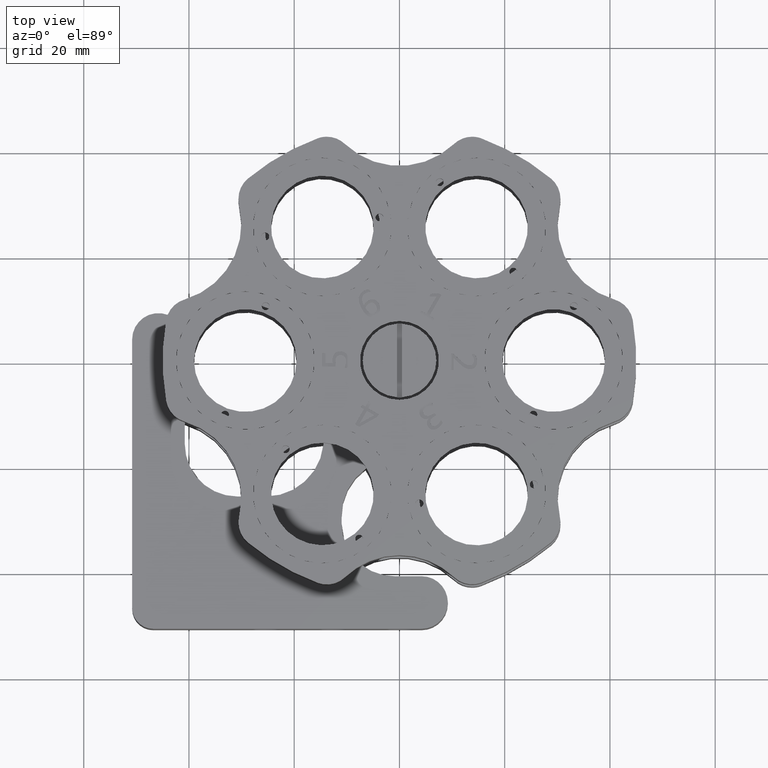
[diagram: clean part render]
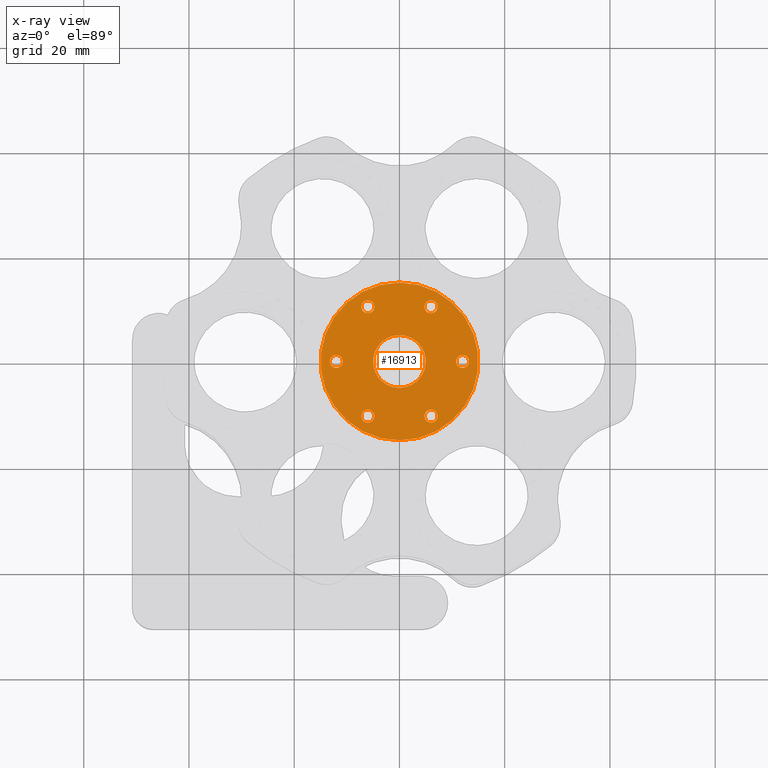
[diagram: x-ray — body ghosted, one internal face saturated and labeled with its STEP entity id]
A machine part, top view, then the same camera in x-ray: the body is ghosted and one INTERNAL B-rep face — a face not visible from any outside direction — is saturated and labeled: STEP entity #16913.
In plain terms, the highlighted planar face has unit normal (0, 0, -1).
Its self-contained STEP definition (entity closure, byte-faithful):
#88 = CIRCLE ( 'NONE', #530, 1.224744871391594000 ) ;
#139 = VERTEX_POINT ( 'NONE', #18850 ) ;
#349 = FACE_BOUND ( 'NONE', #7277, .T. ) ;
#450 = AXIS2_PLACEMENT_3D ( 'NONE', #5429, #5524, #7395 ) ;
#530 = AXIS2_PLACEMENT_3D ( 'NONE', #6548, #16605, #16518 ) ;
#550 = EDGE_LOOP ( 'NONE', ( #15396, #14857 ) ) ;
#652 = FACE_BOUND ( 'NONE', #24494, .T. ) ;
#679 = ORIENTED_EDGE ( 'NONE', *, *, #12152, .F. ) ;
#790 = DIRECTION ( 'NONE',  ( 0.0000000000000000000, 1.000000000000000000, 2.885270652500996800E-016 ) ) ;
#1151 = EDGE_CURVE ( 'NONE', #15142, #8997, #6407, .T. ) ;
#1196 = AXIS2_PLACEMENT_3D ( 'NONE', #16464, #12523, #16557 ) ;
#1659 = CIRCLE ( 'NONE', #19320, 1.224744871391594700 ) ;
#1807 = CARTESIAN_POINT ( 'NONE',  ( 6.000000000000159000, 10.39230484541377700, 2.818925648462311500E-015 ) ) ;
#1837 = ORIENTED_EDGE ( 'NONE', *, *, #15254, .F. ) ;
#1842 = DIRECTION ( 'NONE',  ( -1.797534614761411900E-031, 1.000000000000000000, 2.885270652500995900E-016 ) ) ;
#2183 = CARTESIAN_POINT ( 'NONE',  ( 8.169198098000915100E-016, 5.734907523177760700E-013, -1.084202172485504400E-015 ) ) ;
#2252 = DIRECTION ( 'NONE',  ( -1.810509315419171400E-031, 1.000000000000000000, 2.885270652500995900E-016 ) ) ;
#2573 = DIRECTION ( 'NONE',  ( 1.418662626296612800E-016, 2.885270652501001300E-016, -1.000000000000000000 ) ) ;
#2580 = DIRECTION ( 'NONE',  ( 1.418662626296612800E-016, 2.885270652501001300E-016, -1.000000000000000000 ) ) ;
#2592 = CIRCLE ( 'NONE', #4418, 15.00000000000006900 ) ;
#2706 = AXIS2_PLACEMENT_3D ( 'NONE', #20975, #2580, #8665 ) ;
#2911 = DIRECTION ( 'NONE',  ( 1.418662626296612800E-016, 2.885270652501001300E-016, -1.000000000000000000 ) ) ;
#3420 = EDGE_CURVE ( 'NONE', #20571, #18868, #6334, .T. ) ;
#3941 = CARTESIAN_POINT ( 'NONE',  ( -12.00000000000007300, 6.572863044500116800E-013, -2.818925648462311500E-015 ) ) ;
#3978 = DIRECTION ( 'NONE',  ( 1.418662626296612800E-016, 2.885270652501001300E-016, -1.000000000000000000 ) ) ;
#4167 = DIRECTION ( 'NONE',  ( 1.418662626296612800E-016, 2.885270652501001300E-016, -1.000000000000000000 ) ) ;
#4177 = FACE_BOUND ( 'NONE', #13383, .T. ) ;
#4385 = CARTESIAN_POINT ( 'NONE',  ( 8.169198098000915100E-016, 5.734907523177760700E-013, -1.084202172485504400E-015 ) ) ;
#4418 = AXIS2_PLACEMENT_3D ( 'NONE', #20064, #14141, #1842 ) ;
#4556 = ORIENTED_EDGE ( 'NONE', *, *, #20690, .F. ) ;
#4717 = ORIENTED_EDGE ( 'NONE', *, *, #3420, .F. ) ;
#4793 = CARTESIAN_POINT ( 'NONE',  ( 2.582956877206288400E-015, 15.00000000000057400, 3.243703806265997100E-015 ) ) ;
#4895 = DIRECTION ( 'NONE',  ( 1.418662626296612800E-016, 2.885270652501001300E-016, -1.000000000000000000 ) ) ;
#4924 = CARTESIAN_POINT ( 'NONE',  ( -6.000000000000085300, -11.61704971680431300, -1.871255084902433700E-015 ) ) ;
#5179 = CIRCLE ( 'NONE', #20367, 15.00000000000006900 ) ;
#5307 = AXIS2_PLACEMENT_3D ( 'NONE', #16849, #4895, #20972 ) ;
#5370 = DIRECTION ( 'NONE',  ( 0.0000000000000000000, 1.000000000000000000, 2.885270652500996800E-016 ) ) ;
#5389 = CIRCLE ( 'NONE', #21671, 1.224744871391594000 ) ;
#5429 = CARTESIAN_POINT ( 'NONE',  ( 6.000000000000013300, -10.39230484541276700, -3.252606517456513300E-015 ) ) ;
#5524 = DIRECTION ( 'NONE',  ( 1.418662626296612800E-016, 2.885270652501001300E-016, -1.000000000000000000 ) ) ;
#5832 = AXIS2_PLACEMENT_3D ( 'NONE', #2183, #3978, #12407 ) ;
#6059 = EDGE_CURVE ( 'NONE', #18868, #20571, #6552, .T. ) ;
#6120 = CARTESIAN_POINT ( 'NONE',  ( 7.459866784852650100E-016, -14.99999999999942400, -5.412108151237006300E-015 ) ) ;
#6334 = CIRCLE ( 'NONE', #13763, 1.224744871391594000 ) ;
#6407 = CIRCLE ( 'NONE', #1196, 1.224744871391594700 ) ;
#6423 = FACE_OUTER_BOUND ( 'NONE', #550, .T. ) ;
#6499 = CIRCLE ( 'NONE', #16160, 5.000000000000023100 ) ;
#6548 = CARTESIAN_POINT ( 'NONE',  ( -6.000000000000085300, -10.39230484541271900, -1.517883041479706200E-015 ) ) ;
#6552 = CIRCLE ( 'NONE', #17045, 1.224744871391594000 ) ;
#6927 = DIRECTION ( 'NONE',  ( 1.418662626296612800E-016, 2.885270652501001300E-016, -1.000000000000000000 ) ) ;
#7244 = CARTESIAN_POINT ( 'NONE',  ( 12.00000000000007300, 5.734907523177760700E-013, 6.505213034913026600E-016 ) ) ;
#7277 = EDGE_LOOP ( 'NONE', ( #9683, #679 ) ) ;
#7345 = VERTEX_POINT ( 'NONE', #19619 ) ;
#7359 = CIRCLE ( 'NONE', #2706, 1.224744871391594000 ) ;
#7395 = DIRECTION ( 'NONE',  ( 0.0000000000000000000, 1.000000000000000000, 2.885270652500996800E-016 ) ) ;
#7792 = DIRECTION ( 'NONE',  ( 1.418662626296612800E-016, 2.885270652501001300E-016, -1.000000000000000000 ) ) ;
#8005 = CARTESIAN_POINT ( 'NONE',  ( 6.000000000000013300, -10.39230484541276700, -3.252606517456513300E-015 ) ) ;
#8016 = FACE_BOUND ( 'NONE', #19625, .T. ) ;
#8510 = VERTEX_POINT ( 'NONE', #11480 ) ;
#8665 = DIRECTION ( 'NONE',  ( 0.0000000000000000000, 1.000000000000000000, 2.885270652500996800E-016 ) ) ;
#8709 = ORIENTED_EDGE ( 'NONE', *, *, #12484, .F. ) ;
#8821 = EDGE_LOOP ( 'NONE', ( #8709, #13039 ) ) ;
#8982 = DIRECTION ( 'NONE',  ( -1.797534614761411900E-031, 1.000000000000000000, 2.885270652500995900E-016 ) ) ;
#8997 = VERTEX_POINT ( 'NONE', #23934 ) ;
#9297 = FACE_BOUND ( 'NONE', #8821, .T. ) ;
#9648 = CIRCLE ( 'NONE', #20563, 1.224744871391594000 ) ;
#9683 = ORIENTED_EDGE ( 'NONE', *, *, #13568, .F. ) ;
#9968 = VERTEX_POINT ( 'NONE', #18885 ) ;
#10187 = EDGE_LOOP ( 'NONE', ( #19559, #12682 ) ) ;
#10590 = AXIS2_PLACEMENT_3D ( 'NONE', #17189, #2911, #790 ) ;
#10759 = ORIENTED_EDGE ( 'NONE', *, *, #15578, .F. ) ;
#10915 = CARTESIAN_POINT ( 'NONE',  ( 12.00000000000007300, 1.224744871392168300, 1.003893346914030200E-015 ) ) ;
#11480 = CARTESIAN_POINT ( 'NONE',  ( 8.169198098000906200E-016, 5.000000000000596900, 3.584331537650001500E-016 ) ) ;
#11613 = VERTEX_POINT ( 'NONE', #25009 ) ;
#11663 = CARTESIAN_POINT ( 'NONE',  ( -5.999999999999939600, 9.167559974022315900, 4.200277081016391500E-015 ) ) ;
#12152 = EDGE_CURVE ( 'NONE', #15966, #8510, #19710, .T. ) ;
#12323 = VERTEX_POINT ( 'NONE', #4924 ) ;
#12407 = DIRECTION ( 'NONE',  ( -1.733336949948504200E-031, 1.000000000000000000, 2.885270652500995900E-016 ) ) ;
#12484 = EDGE_CURVE ( 'NONE', #14162, #139, #12970, .T. ) ;
#12523 = DIRECTION ( 'NONE',  ( 1.418662626296612800E-016, 2.885270652501001300E-016, -1.000000000000000000 ) ) ;
#12545 = DIRECTION ( 'NONE',  ( -1.733336949948504200E-031, 1.000000000000000000, 2.885270652500995900E-016 ) ) ;
#12625 = EDGE_CURVE ( 'NONE', #139, #14162, #25473, .T. ) ;
#12682 = ORIENTED_EDGE ( 'NONE', *, *, #14759, .F. ) ;
#12936 = DIRECTION ( 'NONE',  ( 1.418662626296612800E-016, 2.885270652501001300E-016, -1.000000000000000000 ) ) ;
#12970 = CIRCLE ( 'NONE', #14093, 1.224744871391594700 ) ;
#13039 = ORIENTED_EDGE ( 'NONE', *, *, #12625, .F. ) ;
#13383 = EDGE_LOOP ( 'NONE', ( #1837, #4556 ) ) ;
#13568 = EDGE_CURVE ( 'NONE', #8510, #15966, #6499, .T. ) ;
#13720 = VERTEX_POINT ( 'NONE', #19506 ) ;
#13763 = AXIS2_PLACEMENT_3D ( 'NONE', #14750, #21371, #19119 ) ;
#13884 = EDGE_CURVE ( 'NONE', #12323, #7345, #88, .T. ) ;
#14093 = AXIS2_PLACEMENT_3D ( 'NONE', #3941, #7792, #15973 ) ;
#14136 = DIRECTION ( 'NONE',  ( 0.0000000000000000000, 1.000000000000000000, 2.885270652500996800E-016 ) ) ;
#14141 = DIRECTION ( 'NONE',  ( 1.418662626296612800E-016, 2.885270652501001300E-016, -1.000000000000000000 ) ) ;
#14162 = VERTEX_POINT ( 'NONE', #16573 ) ;
#14345 = ORIENTED_EDGE ( 'NONE', *, *, #13884, .F. ) ;
#14537 = CARTESIAN_POINT ( 'NONE',  ( 8.169198098000915100E-016, 5.734907523177760700E-013, -1.084202172485504400E-015 ) ) ;
#14750 = CARTESIAN_POINT ( 'NONE',  ( 6.000000000000159000, 10.39230484541377700, 2.818925648462311500E-015 ) ) ;
#14759 = EDGE_CURVE ( 'NONE', #8997, #15142, #1659, .T. ) ;
#14857 = ORIENTED_EDGE ( 'NONE', *, *, #15418, .T. ) ;
#15086 = FACE_BOUND ( 'NONE', #25500, .T. ) ;
#15142 = VERTEX_POINT ( 'NONE', #10915 ) ;
#15173 = EDGE_CURVE ( 'NONE', #25863, #11613, #23455, .T. ) ;
#15254 = EDGE_CURVE ( 'NONE', #13720, #9968, #18324, .T. ) ;
#15396 = ORIENTED_EDGE ( 'NONE', *, *, #26339, .T. ) ;
#15418 = EDGE_CURVE ( 'NONE', #17470, #21602, #2592, .T. ) ;
#15578 = EDGE_CURVE ( 'NONE', #7345, #12323, #9648, .T. ) ;
#15966 = VERTEX_POINT ( 'NONE', #21728 ) ;
#15973 = DIRECTION ( 'NONE',  ( 0.0000000000000000000, 1.000000000000000000, 2.885270652500995400E-016 ) ) ;
#16160 = AXIS2_PLACEMENT_3D ( 'NONE', #4385, #2573, #12545 ) ;
#16464 = CARTESIAN_POINT ( 'NONE',  ( 12.00000000000007300, 5.734907523177760700E-013, 6.505213034913026600E-016 ) ) ;
#16518 = DIRECTION ( 'NONE',  ( 0.0000000000000000000, 1.000000000000000000, 2.885270652500998300E-016 ) ) ;
#16557 = DIRECTION ( 'NONE',  ( 0.0000000000000000000, 1.000000000000000000, 2.885270652500996800E-016 ) ) ;
#16573 = CARTESIAN_POINT ( 'NONE',  ( -12.00000000000007300, 1.224744871392252000, -2.465553605039584000E-015 ) ) ;
#16605 = DIRECTION ( 'NONE',  ( 1.418662626296612800E-016, 2.885270652501001300E-016, -1.000000000000000000 ) ) ;
#16849 = CARTESIAN_POINT ( 'NONE',  ( -12.00000000000007300, 6.572863044500116800E-013, -2.818925648462311500E-015 ) ) ;
#16913 = ADVANCED_FACE ( 'NONE', ( #652, #8016, #9297, #15086, #4177, #23136, #6423, #349 ), #22720, .T. ) ;
#17045 = AXIS2_PLACEMENT_3D ( 'NONE', #1807, #22104, #20112 ) ;
#17068 = CARTESIAN_POINT ( 'NONE',  ( -6.000000000000085300, -10.39230484541271900, -1.517883041479706200E-015 ) ) ;
#17156 = DIRECTION ( 'NONE',  ( 0.0000000000000000000, 1.000000000000000000, 2.885270652500998300E-016 ) ) ;
#17189 = CARTESIAN_POINT ( 'NONE',  ( -5.999999999999939600, 10.39230484541391100, 4.553649124439118600E-015 ) ) ;
#17261 = CARTESIAN_POINT ( 'NONE',  ( 6.000000000000159000, 11.61704971680537000, 3.172297691885039100E-015 ) ) ;
#17470 = VERTEX_POINT ( 'NONE', #4793 ) ;
#18324 = CIRCLE ( 'NONE', #450, 1.224744871391594000 ) ;
#18850 = CARTESIAN_POINT ( 'NONE',  ( -12.00000000000007300, -1.224744871390937500, -3.172297691885039100E-015 ) ) ;
#18868 = VERTEX_POINT ( 'NONE', #17261 ) ;
#18885 = CARTESIAN_POINT ( 'NONE',  ( 6.000000000000013300, -11.61704971680436100, -3.605978560879240400E-015 ) ) ;
#19119 = DIRECTION ( 'NONE',  ( 0.0000000000000000000, 1.000000000000000000, 2.885270652500996800E-016 ) ) ;
#19320 = AXIS2_PLACEMENT_3D ( 'NONE', #7244, #21613, #5370 ) ;
#19498 = CARTESIAN_POINT ( 'NONE',  ( 8.169198098000915100E-016, 5.734907523177760700E-013, -1.084202172485504400E-015 ) ) ;
#19506 = CARTESIAN_POINT ( 'NONE',  ( 6.000000000000013300, -9.167559974021173700, -2.899234474033785800E-015 ) ) ;
#19559 = ORIENTED_EDGE ( 'NONE', *, *, #1151, .F. ) ;
#19619 = CARTESIAN_POINT ( 'NONE',  ( -6.000000000000085300, -9.167559974021124000, -1.164510998056978700E-015 ) ) ;
#19625 = EDGE_LOOP ( 'NONE', ( #23721, #23897 ) ) ;
#19635 = EDGE_CURVE ( 'NONE', #11613, #25863, #7359, .T. ) ;
#19710 = CIRCLE ( 'NONE', #5832, 5.000000000000023100 ) ;
#19771 = CARTESIAN_POINT ( 'NONE',  ( 6.000000000000159000, 9.167559974022182700, 2.465553605039584000E-015 ) ) ;
#20064 = CARTESIAN_POINT ( 'NONE',  ( 8.169198098000915100E-016, 5.734907523177760700E-013, -1.084202172485504400E-015 ) ) ;
#20112 = DIRECTION ( 'NONE',  ( 0.0000000000000000000, 1.000000000000000000, 2.885270652500996800E-016 ) ) ;
#20367 = AXIS2_PLACEMENT_3D ( 'NONE', #19498, #6927, #8982 ) ;
#20563 = AXIS2_PLACEMENT_3D ( 'NONE', #17068, #12936, #17156 ) ;
#20571 = VERTEX_POINT ( 'NONE', #19771 ) ;
#20690 = EDGE_CURVE ( 'NONE', #9968, #13720, #5389, .T. ) ;
#20972 = DIRECTION ( 'NONE',  ( 0.0000000000000000000, 1.000000000000000000, 2.885270652500995400E-016 ) ) ;
#20975 = CARTESIAN_POINT ( 'NONE',  ( -5.999999999999939600, 10.39230484541391100, 4.553649124439118600E-015 ) ) ;
#21371 = DIRECTION ( 'NONE',  ( 1.418662626296612800E-016, 2.885270652501001300E-016, -1.000000000000000000 ) ) ;
#21602 = VERTEX_POINT ( 'NONE', #6120 ) ;
#21613 = DIRECTION ( 'NONE',  ( 1.418662626296612800E-016, 2.885270652501001300E-016, -1.000000000000000000 ) ) ;
#21671 = AXIS2_PLACEMENT_3D ( 'NONE', #8005, #4167, #14136 ) ;
#21728 = CARTESIAN_POINT ( 'NONE',  ( 9.327112901699562200E-016, -4.999999999999427100, -2.526837498736004900E-015 ) ) ;
#22104 = DIRECTION ( 'NONE',  ( 1.418662626296612800E-016, 2.885270652501001300E-016, -1.000000000000000000 ) ) ;
#22317 = AXIS2_PLACEMENT_3D ( 'NONE', #14537, #24870, #2252 ) ;
#22720 = PLANE ( 'NONE',  #22317 ) ;
#23136 = FACE_BOUND ( 'NONE', #10187, .T. ) ;
#23455 = CIRCLE ( 'NONE', #10590, 1.224744871391594000 ) ;
#23721 = ORIENTED_EDGE ( 'NONE', *, *, #19635, .F. ) ;
#23897 = ORIENTED_EDGE ( 'NONE', *, *, #15173, .F. ) ;
#23934 = CARTESIAN_POINT ( 'NONE',  ( 12.00000000000007300, -1.224744871391021200, 2.971492600685751300E-016 ) ) ;
#24494 = EDGE_LOOP ( 'NONE', ( #25982, #4717 ) ) ;
#24870 = DIRECTION ( 'NONE',  ( 1.418662626296612800E-016, 2.885270652500995900E-016, -1.000000000000000000 ) ) ;
#25009 = CARTESIAN_POINT ( 'NONE',  ( -5.999999999999939600, 11.61704971680550500, 4.907021167861845800E-015 ) ) ;
#25473 = CIRCLE ( 'NONE', #5307, 1.224744871391594700 ) ;
#25500 = EDGE_LOOP ( 'NONE', ( #10759, #14345 ) ) ;
#25863 = VERTEX_POINT ( 'NONE', #11663 ) ;
#25982 = ORIENTED_EDGE ( 'NONE', *, *, #6059, .F. ) ;
#26339 = EDGE_CURVE ( 'NONE', #21602, #17470, #5179, .T. ) ;